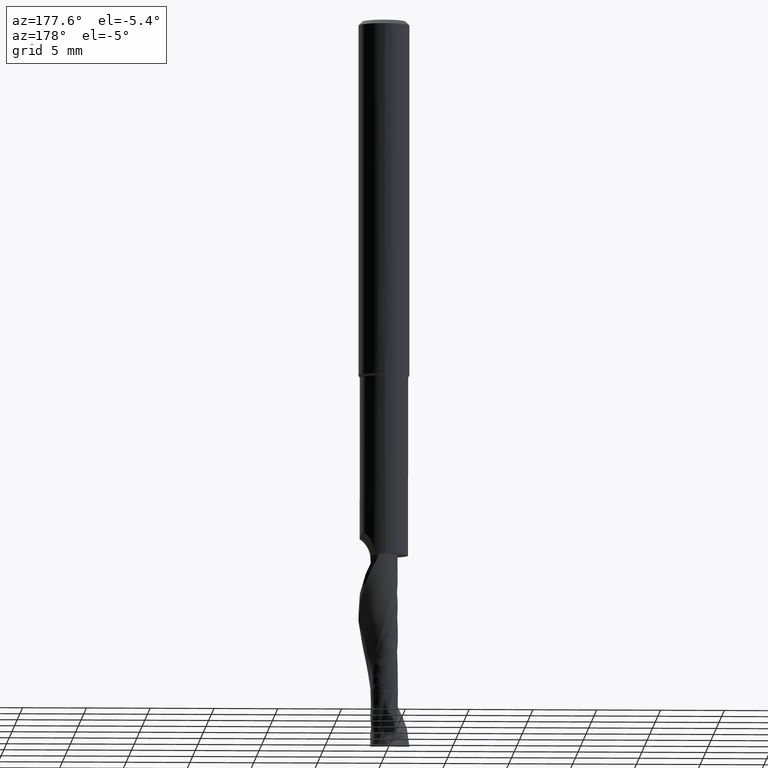
[diagram: clean part render]
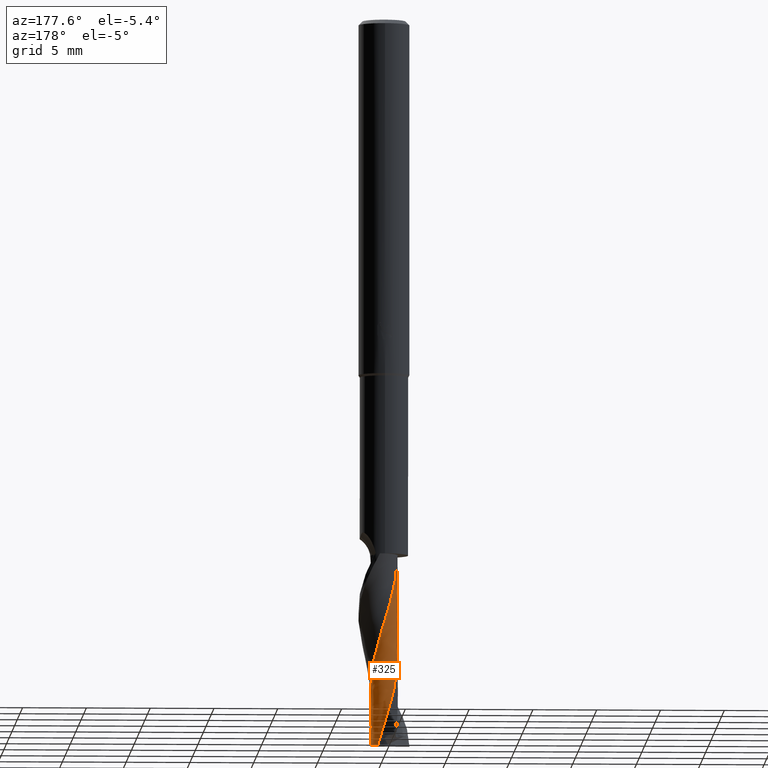
[diagram: same view with one face highlighted and labeled with its STEP entity id]
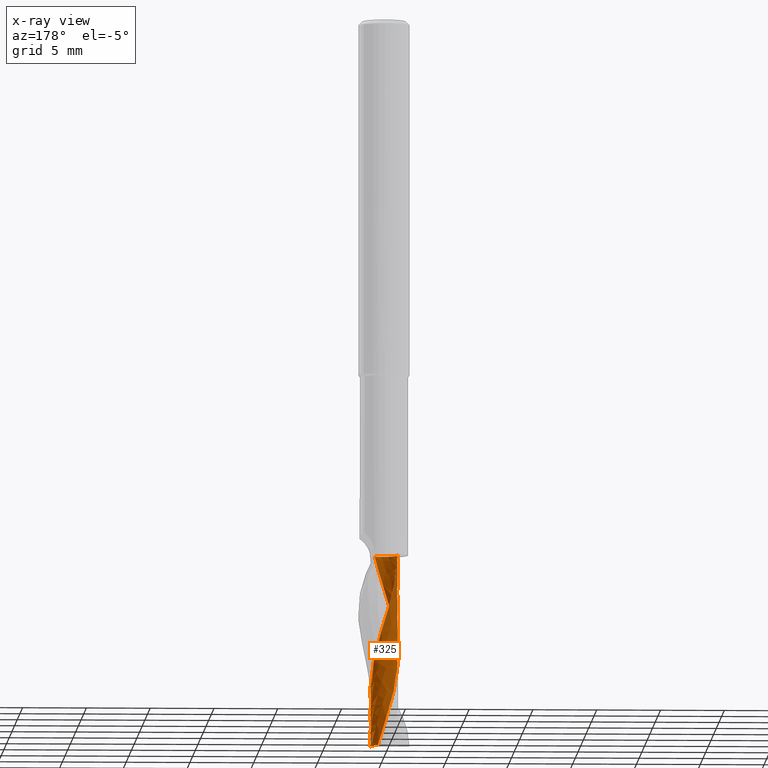
[diagram: x-ray of the same camera — body ghosted, the highlighted face saturated]
A machine part, auxiliary view. The second image highlights one B-rep face of the part: STEP entity #325.
The next image is the same camera in x-ray: the body ghosted, the highlighted face saturated — about 0% of this face is hidden behind the body in this view.
In plain terms, the highlighted face is a freeform B-spline surface patch.
Its self-contained STEP definition (entity closure, byte-faithful):
#305=EDGE_CURVE('',#445,#691,#803,.T.);
#325=ADVANCED_FACE('',(#825),#826,.T.);
#351=EDGE_CURVE('',#563,#491,#854,.T.);
#361=EDGE_CURVE('',#563,#691,#868,.T.);
#445=VERTEX_POINT('',#962);
#491=VERTEX_POINT('',#1009);
#563=VERTEX_POINT('',#1089);
#591=EDGE_CURVE('',#491,#703,#1119,.T.);
#661=EDGE_CURVE('',#703,#445,#1197,.T.);
#691=VERTEX_POINT('',#1227);
#703=VERTEX_POINT('',#1240);
#803=B_SPLINE_CURVE_WITH_KNOTS('',3,(#1369,#1370,#1371,#1372,#1373,#1374,#1375,#1376,#1377,#1378,#1379,#1380,#1381,#1382),.UNSPECIFIED.,.F.,.F.,(4,2,2,2,2,2,4),(0.0,0.421110566763019,0.842221411525551,1.26333260800939,1.68444420255609,2.08281996873919,2.48119707002098),.UNSPECIFIED.);
#825=FACE_OUTER_BOUND('',#1643,.T.);
#826=B_SPLINE_SURFACE_WITH_KNOTS('',3,3,((#1644,#1645,#1646,#1647,#1648,#1649,#1650,#1651,#1652,#1653,#1654,#1655,#1656,#1657,#1658,#1659,#1660,#1661,#1662,#1663,#1664,#1665,#1666,#1667,#1668,#1669,#1670,#1671,#1672,#1673,#1674,#1675,#1676,#1677,#1678),(#1679,#1680,#1681,#1682,#1683,#1684,#1685,#1686,#1687,#1688,#1689,#1690,#1691,#1692,#1693,#1694,#1695,#1696,#1697,#1698,#1699,#1700,#1701,#1702,#1703,#1704,#1705,#1706,#1707,#1708,#1709,#1710,#1711,#1712,#1713),(#1714,#1715,#1716,#1717,#1718,#1719,#1720,#1721,#1722,#1723,#1724,#1725,#1726,#1727,#1728,#1729,#1730,#1731,#1732,#1733,#1734,#1735,#1736,#1737,#1738,#1739,#1740,#1741,#1742,#1743,#1744,#1745,#1746,#1747,#1748),(#1749,#1750,#1751,#1752,#1753,#1754,#1755,#1756,#1757,#1758,#1759,#1760,#1761,#1762,#1763,#1764,#1765,#1766,#1767,#1768,#1769,#1770,#1771,#1772,#1773,#1774,#1775,#1776,#1777,#1778,#1779,#1780,#1781,#1782,#1783),(#1784,#1785,#1786,#1787,#1788,#1789,#1790,#1791,#1792,#1793,#1794,#1795,#1796,#1797,#1798,#1799,#1800,#1801,#1802,#1803,#1804,#1805,#1806,#1807,#1808,#1809,#1810,#1811,#1812,#1813,#1814,#1815,#1816,#1817,#1818),(#1819,#1820,#1821,#1822,#1823,#1824,#1825,#1826,#1827,#1828,#1829,#1830,#1831,#1832,#1833,#1834,#1835,#1836,#1837,#1838,#1839,#1840,#1841,#1842,#1843,#1844,#1845,#1846,#1847,#1848,#1849,#1850,#1851,#1852,#1853),(#1854,#1855,#1856,#1857,#1858,#1859,#1860,#1861,#1862,#1863,#1864,#1865,#1866,#1867,#1868,#1869,#1870,#1871,#1872,#1873,#1874,#1875,#1876,#1877,#1878,#1879,#1880,#1881,#1882,#1883,#1884,#1885,#1886,#1887,#1888)),.UNSPECIFIED.,.F.,.F.,.F.,(4,1,1,1,4),(4,1,2,1,2,1,2,2,2,2,2,2,2,2,2,2,2,2,4),(-2.29472854696994,-1.72104641022745,-1.14736427348497,-0.573682136742484,9.55386460006911E-017),(0.0,0.719943288048691,1.43988657609738,2.15982986414607,2.87977315219476,4.31965972829214,5.75954630438952,7.19943288048691,8.63931945658429,10.0792060326817,11.519092608779,12.9589791848764,14.3988657609738,15.8387523370712,17.2786389131686,18.718525489266,20.1584120653633,21.5982986414607,23.0381852175581),.UNSPECIFIED.);
#854=B_SPLINE_CURVE_WITH_KNOTS('',3,(#2002,#2003,#2004,#2005,#2006,#2007,#2008,#2009,#2010,#2011),.UNSPECIFIED.,.F.,.F.,(4,2,2,2,4),(0.0,0.421110385458142,0.842221169891116,1.16426893967863,1.48631686795479),.UNSPECIFIED.);
#868=B_SPLINE_CURVE_WITH_KNOTS('',3,(#2028,#2029,#2030,#2031,#2032,#2033,#2034,#2035,#2036,#2037,#2038,#2039,#2040,#2041,#2042,#2043,#2044,#2045,#2046,#2047,#2048,#2049,#2050,#2051,#2052,#2053,#2054,#2055,#2056,#2057,#2058,#2059,#2060,#2061,#2062),.UNSPECIFIED.,.F.,.F.,(4,1,2,1,2,1,2,2,2,2,2,2,2,2,2,2,2,2,4),(0.0,0.719943288048691,1.43988657609738,2.15982986414607,2.87977315219476,4.31965972829214,5.75954630438952,7.19943288048691,8.63931945658429,10.0792060326817,11.519092608779,12.9589791848764,14.3988657609738,15.8387523370712,17.2786389131686,18.718525489266,20.1584120653633,21.5982986414607,23.0381852175581),.UNSPECIFIED.);
#962=CARTESIAN_POINT('',(-1.06526862432302,0.0507138447766669,-42.0));
#1009=CARTESIAN_POINT('',(1.03933607182173,-0.272271360000001,-57.0));
#1089=CARTESIAN_POINT('',(0.525325365679518,0.951860172944799,-56.9999999999998));
#1119=B_SPLINE_CURVE_WITH_KNOTS('',3,(#3325,#3326,#3327,#3328,#3329,#3330,#3331,#3332),.UNSPECIFIED.,.F.,.F.,(4,2,2,4),(0.0,0.462170003948689,0.758488482032344,1.05698826577929),.UNSPECIFIED.);
#1197=B_SPLINE_CURVE_WITH_KNOTS('',3,(#3583,#3584,#3585,#3586,#3587,#3588,#3589,#3590,#3591,#3592,#3593,#3594,#3595,#3596,#3597,#3598,#3599,#3600,#3601,#3602,#3603,#3604,#3605,#3606,#3607,#3608,#3609,#3610,#3611,#3612,#3613,#3614,#3615,#3616,#3617,#3618,#3619,#3620,#3621),.UNSPECIFIED.,.F.,.F.,(4,1,2,1,2,1,1,1,2,1,1,2,1,1,2,1,1,1,2,1,1,2,1,1,2,1,1,1,4),(0.0,0.719943288048691,1.43988657609738,2.15982986414607,2.87977315219476,3.59971644024345,4.31965972829214,5.03960301634083,5.75954630438952,6.47948959243822,7.55940452451125,8.63931945658429,9.71923438865732,10.7991493207304,11.519092608779,12.2390358968277,12.9589791848764,13.6789224729251,14.3988657609738,15.1188090490225,16.1987239810955,17.2786389131686,18.3585538452416,19.4384687773146,20.1584120653633,20.878355353412,21.5982986414607,22.3182419295094,23.0381852175581),.UNSPECIFIED.);
#1227=CARTESIAN_POINT('',(0.683510137595244,-0.846623738727398,-41.9999999999999));
#1240=CARTESIAN_POINT('',(0.419232439623331,-0.981047397900082,-56.7697047050683));
#1369=CARTESIAN_POINT('',(-1.06526862442261,0.0507138447676308,-42.0));
#1370=CARTESIAN_POINT('',(-1.07237452036183,-0.0894763695150361,-42.0));
#1371=CARTESIAN_POINT('',(-1.05203029032943,-0.229714233472873,-42.0));
#1372=CARTESIAN_POINT('',(-0.958731768449056,-0.494498292006669,-42.0));
#1373=CARTESIAN_POINT('',(-0.886669421913038,-0.616513009581565,-42.0));
#1374=CARTESIAN_POINT('',(-0.699830820286628,-0.8260521857609,-42.0));
#1375=CARTESIAN_POINT('',(-0.586840803396218,-0.911573312327195,-42.0));
#1376=CARTESIAN_POINT('',(-0.334439001240091,-1.03449116923069,-42.0));
#1377=CARTESIAN_POINT('',(-0.197440290575393,-1.0707126918751,-42.0));
#1378=CARTESIAN_POINT('',(0.0751669363192613,-1.08812030164771,-42.0));
#1379=CARTESIAN_POINT('',(0.208119006321404,-1.0720232480769,-42.0));
#1380=CARTESIAN_POINT('',(0.461466118724199,-0.992334765425384,-42.0));
#1381=CARTESIAN_POINT('',(0.579693993712606,-0.929424830639047,-42.0));
#1382=CARTESIAN_POINT('',(0.683510137595202,-0.846623738727432,-42.0));
#1643=EDGE_LOOP('',(#4155,#4156,#4157,#4158,#4159));
#1644=CARTESIAN_POINT('',(-0.745410362770607,-0.778736371189316,-61.0));
#1645=CARTESIAN_POINT('',(-0.710858168081494,-0.803201734456152,-60.7603137171853));
#1646=CARTESIAN_POINT('',(-0.628700295122371,-0.863262752812119,-60.2814547144467));
#1647=CARTESIAN_POINT('',(-0.505331455114652,-0.938212019447683,-59.8026766142409));
#1648=CARTESIAN_POINT('',(-0.355674214242603,-1.00838090956248,-59.3231970892324));
#1649=CARTESIAN_POINT('',(-0.204971542055766,-1.05637683104392,-58.8436634261079));
#1650=CARTESIAN_POINT('',(-0.0549148999149831,-1.06948069756197,-58.3644418018073));
#1651=CARTESIAN_POINT('',(0.172065251191029,-1.0659294403695,-57.6458949883129));
#1652=CARTESIAN_POINT('',(0.451520523343251,-0.996175411741687,-56.6874635591332));
#1653=CARTESIAN_POINT('',(0.690794601401604,-0.825903055455958,-55.729654205104));
#1654=CARTESIAN_POINT('',(0.902102247170002,-0.594547401004369,-54.771157495296));
#1655=CARTESIAN_POINT('',(0.971931388211046,-0.465354780369871,-54.2916996133276));
#1656=CARTESIAN_POINT('',(1.05819125994818,-0.19294221144568,-53.3333114673274));
#1657=CARTESIAN_POINT('',(1.07568410348672,-0.0477606214384906,-52.8543807561396));
#1658=CARTESIAN_POINT('',(1.04747690216153,0.263829860971148,-51.8960864726259));
#1659=CARTESIAN_POINT('',(0.999337368228268,0.403037633165716,-51.4166961138958));
#1660=CARTESIAN_POINT('',(0.856259997073559,0.65122903494174,-50.4583674622387));
#1661=CARTESIAN_POINT('',(0.760646435757398,0.762277189630902,-49.9794292131119));
#1662=CARTESIAN_POINT('',(0.511982645402046,0.951190083374308,-49.0210937492565));
#1663=CARTESIAN_POINT('',(0.377037154310089,1.0094232599712,-48.5416958744105));
#1664=CARTESIAN_POINT('',(0.0976792019401992,1.07124146159706,-47.5833634187959));
#1665=CARTESIAN_POINT('',(-0.0487198371896007,1.07570506001651,-47.1044288469826));
#1666=CARTESIAN_POINT('',(-0.356095884709745,1.01981129706638,-46.1460944152656));
#1667=CARTESIAN_POINT('',(-0.490251823085146,0.959548470236688,-45.6666966048052));
#1668=CARTESIAN_POINT('',(-0.724625891043754,0.795048866563263,-44.7083601783653));
#1669=CARTESIAN_POINT('',(-0.826834017137298,0.689933344559016,-44.229421539479));
#1670=CARTESIAN_POINT('',(-0.99311564586901,0.425145833667939,-43.2710704078216));
#1671=CARTESIAN_POINT('',(-1.03901339126686,0.285564479207503,-42.7916695695128));
#1672=CARTESIAN_POINT('',(-1.07564491396661,0.00195197574361278,-41.8333613039435));
#1673=CARTESIAN_POINT('',(-1.06709967136522,-0.144159019796875,-41.3544540779593));
#1674=CARTESIAN_POINT('',(-0.984066796631788,-0.445745237883234,-40.39619892613));
#1675=CARTESIAN_POINT('',(-0.911902758239155,-0.574338670760893,-39.916787128951));
#1676=CARTESIAN_POINT('',(-0.727507965309587,-0.79246822730037,-38.9583525810429));
#1677=CARTESIAN_POINT('',(-0.61432255763297,-0.883840543194126,-38.4793290935274));
#1678=CARTESIAN_POINT('',(-0.477194076033998,-0.953822592769467,-38.0000946378718));
#1679=CARTESIAN_POINT('',(-0.596487520746686,-0.921271795053742,-61.0));
#1680=CARTESIAN_POINT('',(-0.556569927417889,-0.940131232464095,-60.7603194320611));
#1681=CARTESIAN_POINT('',(-0.461727120337808,-0.985810477007669,-60.2814437837753));
#1682=CARTESIAN_POINT('',(-0.323682117648338,-1.03698357886209,-59.8026444780488));
#1683=CARTESIAN_POINT('',(-0.160921688212159,-1.07783263819034,-59.3231818253761));
#1684=CARTESIAN_POINT('',(-0.00118131759887036,-1.09656698434505,-58.84366803396));
#1685=CARTESIAN_POINT('',(0.151442189884802,-1.08067703903966,-58.3644494197837));
#1686=CARTESIAN_POINT('',(0.37768997543993,-1.03322951529471,-57.6458916196047));
#1687=CARTESIAN_POINT('',(0.644369306591047,-0.90953335933463,-56.6874655005713));
#1688=CARTESIAN_POINT('',(0.851070634115776,-0.692756257459815,-55.7296277085834));
#1689=CARTESIAN_POINT('',(1.01718067193864,-0.420843485259329,-54.7711398191002));
#1690=CARTESIAN_POINT('',(1.06224856819779,-0.278015191090914,-54.2916977115073));
#1691=CARTESIAN_POINT('',(1.0961501520155,0.0115379142825617,-53.3333125327882));
#1692=CARTESIAN_POINT('',(1.08562170489311,0.160360947048192,-52.8543690367521));
#1693=CARTESIAN_POINT('',(0.997084009268033,0.466001856249058,-51.8960726011444));
#1694=CARTESIAN_POINT('',(0.922073188383587,0.596137959210471,-51.4166943678855));
#1695=CARTESIAN_POINT('',(0.73088567519894,0.817176167233087,-50.4583654553685));
#1696=CARTESIAN_POINT('',(0.61365259241906,0.909934318312296,-49.9794148302293));
#1697=CARTESIAN_POINT('',(0.328761594743143,1.05038425140644,-49.021079431589));
#1698=CARTESIAN_POINT('',(0.182403492898499,1.08272526069736,-48.5416941152234));
#1699=CARTESIAN_POINT('',(-0.10937864532252,1.09079080214597,-47.5833615617863));
#1700=CARTESIAN_POINT('',(-0.256888890677298,1.06697150192239,-47.1044144115368));
#1701=CARTESIAN_POINT('',(-0.552967701858174,0.951607659894461,-46.1460800450347));
#1702=CARTESIAN_POINT('',(-0.67571882714836,0.865427787766661,-45.6666947268339));
#1703=CARTESIAN_POINT('',(-0.878790038411094,0.655442955133225,-44.7083584960389));
#1704=CARTESIAN_POINT('',(-0.960854498052679,0.530400676520408,-44.2294074843507));
#1705=CARTESIAN_POINT('',(-1.07557514651304,0.233802659598487,-43.2710572657029));
#1706=CARTESIAN_POINT('',(-1.09467337084306,0.0851734487767738,-42.7916691500095));
#1707=CARTESIAN_POINT('',(-1.07668972769783,-0.206022034128495,-41.8333594497108));
#1708=CARTESIAN_POINT('',(-1.03989390457931,-0.350733423086035,-41.3544381874225));
#1709=CARTESIAN_POINT('',(-0.898554347176122,-0.635746227376536,-40.3961787966202));
#1710=CARTESIAN_POINT('',(-0.801534411186692,-0.75060999128518,-39.9167803181859));
#1711=CARTESIAN_POINT('',(-0.57474328960217,-0.933590120311848,-38.9583513135503));
#1712=CARTESIAN_POINT('',(-0.443691798446325,-1.00328766493695,-38.4793201815859));
#1713=CARTESIAN_POINT('',(-0.29314045656894,-1.04665914305066,-38.0000895083986));
#1714=CARTESIAN_POINT('',(-0.214894295938773,-1.11822949173827,-61.0));
#1715=CARTESIAN_POINT('',(-0.167562760706108,-1.1227246042726,-60.7603428712912));
#1716=CARTESIAN_POINT('',(-0.0558571282148039,-1.13218951175308,-60.2813989544438));
#1717=CARTESIAN_POINT('',(0.0974891501705745,-1.12720457293862,-59.8025126678088));
#1718=CARTESIAN_POINT('',(0.269139047723568,-1.10174723015319,-59.3231192259401));
#1719=CARTESIAN_POINT('',(0.429680609420141,-1.05668898924038,-58.8436869327104));
#1720=CARTESIAN_POINT('',(0.570334835162614,-0.98135731847416,-58.3644806602971));
#1721=CARTESIAN_POINT('',(0.769233628277117,-0.846639339062261,-57.6458778116744));
#1722=CARTESIAN_POINT('',(0.978577504978726,-0.622703793258758,-56.6874734671876));
#1723=CARTESIAN_POINT('',(1.0927762671552,-0.332221012374736,-55.7295190175723));
#1724=CARTESIAN_POINT('',(1.14466733080023,-0.00593052911545983,-54.7710673372241));
#1725=CARTESIAN_POINT('',(1.1322226050821,0.149539332756311,-54.2916899342438));
#1726=CARTESIAN_POINT('',(1.05140739249676,0.442462438893621,-53.3333168797509));
#1727=CARTESIAN_POINT('',(0.982746578587671,0.582036635111121,-52.8543209092945));
#1728=CARTESIAN_POINT('',(0.777180340952087,0.840213555154849,-51.8960157685259));
#1729=CARTESIAN_POINT('',(0.653831762707426,0.936378884533968,-51.4166872361896));
#1730=CARTESIAN_POINT('',(0.382535140406296,1.07479580095219,-50.4583571947667));
#1731=CARTESIAN_POINT('',(0.232893118740553,1.11826243545598,-49.9793557453288));
#1732=CARTESIAN_POINT('',(-0.0957990922709878,1.14052274702949,-49.0210208021505));
#1733=CARTESIAN_POINT('',(-0.249690280698403,1.11440258114537,-48.5416868008806));
#1734=CARTESIAN_POINT('',(-0.534597150965804,1.00774666697964,-47.5833540444053));
#1735=CARTESIAN_POINT('',(-0.667649016440907,0.926764419484328,-47.1043552508479));
#1736=CARTESIAN_POINT('',(-0.906086882141917,0.699244639237492,-46.146021060251));
#1737=CARTESIAN_POINT('',(-0.990768463217517,0.568009388136714,-45.6666871436232));
#1738=CARTESIAN_POINT('',(-1.10447550538831,0.285606948911104,-44.7083514768273));
#1739=CARTESIAN_POINT('',(-1.13454315716296,0.132630890740799,-44.2293497357986));
#1740=CARTESIAN_POINT('',(-1.12748905815431,-0.197117099408035,-43.2710034656433));
#1741=CARTESIAN_POINT('',(-1.08770775790117,-0.348019671474192,-42.7916672646364));
#1742=CARTESIAN_POINT('',(-0.956134307373199,-0.622158814444629,-41.833352009428));
#1743=CARTESIAN_POINT('',(-0.863720740716596,-0.747414409327964,-41.3543729970033));
#1744=CARTESIAN_POINT('',(-0.615661016450184,-0.964930811147936,-40.3960962520596));
#1745=CARTESIAN_POINT('',(-0.477076787882721,-1.03770585634487,-39.9167522968156));
#1746=CARTESIAN_POINT('',(-0.186307857398849,-1.12545812061428,-38.9583462022217));
#1747=CARTESIAN_POINT('',(-0.0323425943091227,-1.14131498053528,-38.4792835078258));
#1748=CARTESIAN_POINT('',(0.129334555386239,-1.12360449595583,-38.0000684700647));
#1749=CARTESIAN_POINT('',(0.426403381277461,-1.0558394343148,-61.0));
#1750=CARTESIAN_POINT('',(0.47138618589726,-1.03619427652318,-60.7604028263964));
#1751=CARTESIAN_POINT('',(0.57486547658777,-0.986287054124797,-60.2812842835533));
#1752=CARTESIAN_POINT('',(0.701781906451373,-0.898063976986566,-59.8021755160938));
#1753=CARTESIAN_POINT('',(0.830659251203996,-0.781796926672167,-59.3229590988248));
#1754=CARTESIAN_POINT('',(0.940280072563664,-0.655681712380703,-58.8437352746205));
#1755=CARTESIAN_POINT('',(1.01745934886702,-0.51517279231171,-58.364560572774));
#1756=CARTESIAN_POINT('',(1.11084440750033,-0.292721880156755,-57.6458424872147));
#1757=CARTESIAN_POINT('',(1.16632191203607,0.0108821859874899,-56.6874938398474));
#1758=CARTESIAN_POINT('',(1.10392924303672,0.31896216891348,-55.7292410131807));
#1759=CARTESIAN_POINT('',(0.967591296419168,0.620810483033399,-54.7708819210562));
#1760=CARTESIAN_POINT('',(0.87236623695708,0.745395545273501,-54.2916700267273));
#1761=CARTESIAN_POINT('',(0.644217561730803,0.949180617853169,-53.3333280129321));
#1762=CARTESIAN_POINT('',(0.50981523960948,1.02977462789331,-52.8541978265498));
#1763=CARTESIAN_POINT('',(0.195383408263367,1.13286000382194,-51.8958703747968));
#1764=CARTESIAN_POINT('',(0.0387634978671734,1.14685874037409,-51.4166689460996));
#1765=CARTESIAN_POINT('',(-0.266245214039719,1.11592593348762,-50.4583361130196));
#1766=CARTESIAN_POINT('',(-0.416609810872376,1.07088247840602,-49.9792046888077));
#1767=CARTESIAN_POINT('',(-0.70429678548251,0.908518984824706,-49.0208707581908));
#1768=CARTESIAN_POINT('',(-0.820092225732388,0.802581480351935,-48.5416681675349));
#1769=CARTESIAN_POINT('',(-1.002944040674,0.556926451585434,-47.5833347398272));
#1770=CARTESIAN_POINT('',(-1.07123872122366,0.415665404301837,-47.1042039211433));
#1771=CARTESIAN_POINT('',(-1.14572447810151,0.0937060818268936,-46.1458701866587));
#1772=CARTESIAN_POINT('',(-1.14574537069535,-0.0633267428864512,-45.6666676545266));
#1773=CARTESIAN_POINT('',(-1.08786519911659,-0.364257764020262,-44.7083336144999));
#1774=CARTESIAN_POINT('',(-1.0296560123006,-0.510113616589765,-44.2292021569814));
#1775=CARTESIAN_POINT('',(-0.842130055418109,-0.782512968070744,-43.2708657152664));
#1776=CARTESIAN_POINT('',(-0.726285830110965,-0.888349832649803,-42.7916625932416));
#1777=CARTESIAN_POINT('',(-0.465427534815333,-1.04852281263289,-41.8333328268213));
#1778=CARTESIAN_POINT('',(-0.318750921055491,-1.10398031654264,-41.3542062437341));
#1779=CARTESIAN_POINT('',(0.00887416180856904,-1.14954771714294,-40.3958851152849));
#1780=CARTESIAN_POINT('',(0.165583954157903,-1.13543820519561,-39.9166806723062));
#1781=CARTESIAN_POINT('',(0.459470514821171,-1.0510830390244,-38.958333076882));
#1782=CARTESIAN_POINT('',(0.598487300974245,-0.980425574468644,-38.4791897743751));
#1783=CARTESIAN_POINT('',(0.724463530259229,-0.876669827594027,-38.0000146562739));
#1784=CARTESIAN_POINT('',(0.931184050385586,-0.655387468805412,-61.0));
#1785=CARTESIAN_POINT('',(0.961092543153849,-0.616741034714837,-60.760468383953));
#1786=CARTESIAN_POINT('',(1.02543953111968,-0.521430378117194,-60.2811588974667));
#1787=CARTESIAN_POINT('',(1.0849813105612,-0.377637736152506,-59.8018068588852));
#1788=CARTESIAN_POINT('',(1.12864819405155,-0.208311222855233,-59.3227840090269));
#1789=CARTESIAN_POINT('',(1.15150772836359,-0.0417503211156925,-58.8437881334587));
#1790=CARTESIAN_POINT('',(1.1399994528385,0.119053023329625,-58.364647953041));
#1791=CARTESIAN_POINT('',(1.09714602860015,0.357927876169068,-57.6458038611103));
#1792=CARTESIAN_POINT('',(0.980149262605921,0.644940152619921,-56.687516120994));
#1793=CARTESIAN_POINT('',(0.759882699373392,0.871959613021174,-55.7289370219208));
#1794=CARTESIAN_POINT('',(0.478712090113305,1.05112155643663,-54.7706791874622));
#1795=CARTESIAN_POINT('',(0.330719826657238,1.10483869170621,-54.2916482635496));
#1796=CARTESIAN_POINT('',(0.0271997701058085,1.15379284939992,-53.3333401818597));
#1797=CARTESIAN_POINT('',(-0.130410338029655,1.14916833297237,-52.8540632390209));
#1798=CARTESIAN_POINT('',(-0.45210876024215,1.06290436531292,-51.8957113980889));
#1799=CARTESIAN_POINT('',(-0.59208010709124,0.98983218679121,-51.4166489613469));
#1800=CARTESIAN_POINT('',(-0.833493882411898,0.798362026701233,-50.4583130468421));
#1801=CARTESIAN_POINT('',(-0.936428633225205,0.678584645635452,-49.9790394944462));
#1802=CARTESIAN_POINT('',(-1.08947414565697,0.383405784548643,-49.0207067157588));
#1803=CARTESIAN_POINT('',(-1.12995309773058,0.231103339698065,-48.5416477871163));
#1804=CARTESIAN_POINT('',(-1.15164794692318,-0.0759124527166302,-47.5833136372109));
#1805=CARTESIAN_POINT('',(-1.13283661090819,-0.232657687709366,-47.1040384302979));
#1806=CARTESIAN_POINT('',(-1.0183602252048,-0.544957958428329,-46.1457052348441));
#1807=CARTESIAN_POINT('',(-0.933271556701095,-0.677711216075703,-45.6666463455655));
#1808=CARTESIAN_POINT('',(-0.721215193403316,-0.90107996303262,-44.7083140817381));
#1809=CARTESIAN_POINT('',(-0.592724479215214,-0.993045219659222,-44.2290407553615));
#1810=CARTESIAN_POINT('',(-0.284740468841176,-1.11932926283084,-43.2707151251288));
#1811=CARTESIAN_POINT('',(-0.129467501556792,-1.14603301849193,-42.7916574676193));
#1812=CARTESIAN_POINT('',(0.178127833894316,-1.14031679742988,-41.8333118694087));
#1813=CARTESIAN_POINT('',(0.33250003149646,-1.10769921060563,-41.3540239162709));
#1814=CARTESIAN_POINT('',(0.633632742775086,-0.965660285382083,-40.3956542408116));
#1815=CARTESIAN_POINT('',(0.758412117263008,-0.86873714083265,-39.916602380815));
#1816=CARTESIAN_POINT('',(0.961510041833278,-0.638132770062865,-38.9583186991018));
#1817=CARTESIAN_POINT('',(1.04101764765046,-0.502922766298487,-38.4790872743311));
#1818=CARTESIAN_POINT('',(1.09030879580485,-0.346271355876338,-37.999955813857));
#1819=CARTESIAN_POINT('',(1.06897458208485,-0.24866126684069,-61.0));
#1820=CARTESIAN_POINT('',(1.08357268987466,-0.204828121163533,-60.7605018258432));
#1821=CARTESIAN_POINT('',(1.10959319568434,-0.0982493115980552,-60.281094936612));
#1822=CARTESIAN_POINT('',(1.11132091334582,0.0522901908428126,-59.8016188008666));
#1823=CARTESIAN_POINT('',(1.08809616901597,0.220508581488786,-59.3226946940202));
#1824=CARTESIAN_POINT('',(1.04775714867987,0.37833882125871,-58.8438150971022));
#1825=CARTESIAN_POINT('',(0.979258850402356,0.51843336361339,-58.36469252697));
#1826=CARTESIAN_POINT('',(0.854193852549302,0.717237512806958,-57.6457841573475));
#1827=CARTESIAN_POINT('',(0.646638011888674,0.932592082331983,-56.6875274820407));
#1828=CARTESIAN_POINT('',(0.367298979109296,1.05714098263165,-55.7287819614974));
#1829=CARTESIAN_POINT('',(0.0494094639384411,1.11524422346319,-54.7705757603835));
#1830=CARTESIAN_POINT('',(-0.102497516743635,1.11020500559134,-54.2916371483541));
#1831=CARTESIAN_POINT('',(-0.392225061239686,1.04522257346685,-53.3333464028885));
#1832=CARTESIAN_POINT('',(-0.532011839112514,0.984496637157452,-52.8539946004033));
#1833=CARTESIAN_POINT('',(-0.789307303054415,0.789598654544145,-51.895630285457));
#1834=CARTESIAN_POINT('',(-0.888472086060587,0.673800578237491,-51.4166387892664));
#1835=CARTESIAN_POINT('',(-1.0362301944503,0.415451087832258,-50.4583012580375));
#1836=CARTESIAN_POINT('',(-1.08558683594967,0.270985501408392,-49.9789552283551));
#1837=CARTESIAN_POINT('',(-1.11522625249708,-0.0498613455893425,-49.0206230335179));
#1838=CARTESIAN_POINT('',(-1.09677348098115,-0.200885578176142,-48.5416373857118));
#1839=CARTESIAN_POINT('',(-1.0060565480441,-0.483977497089096,-47.5833028775367));
#1840=CARTESIAN_POINT('',(-0.932880037017591,-0.617892849045859,-47.1039539844269));
#1841=CARTESIAN_POINT('',(-0.71610694037333,-0.856454427887611,-46.1456211172436));
#1842=CARTESIAN_POINT('',(-0.592149896579385,-0.94483819365294,-45.6666354686173));
#1843=CARTESIAN_POINT('',(-0.321826233567351,-1.06903200960844,-44.7083041247474));
#1844=CARTESIAN_POINT('',(-0.173476257303446,-1.10541218022953,-44.2289583981804));
#1845=CARTESIAN_POINT('',(0.149108464652441,-1.10633510574437,-43.270638330905));
#1846=CARTESIAN_POINT('',(0.297839884309109,-1.07447864338455,-42.7916548160303));
#1847=CARTESIAN_POINT('',(0.571613092513279,-0.958989440211498,-41.8333012156567));
#1848=CARTESIAN_POINT('',(0.698444557512826,-0.874280609320493,-41.3539308848181));
#1849=CARTESIAN_POINT('',(0.916904814904582,-0.636791148738165,-40.395536492117));
#1850=CARTESIAN_POINT('',(0.993861637343052,-0.505051645407287,-39.9165623918322));
#1851=CARTESIAN_POINT('',(1.09324641334273,-0.225400687926482,-38.9583114161708));
#1852=CARTESIAN_POINT('',(1.11609506836566,-0.0755705260847657,-38.4790349648086));
#1853=CARTESIAN_POINT('',(1.10332670327303,0.0829639725566931,-37.999925797514));
#1854=CARTESIAN_POINT('',(1.07714679396957,-0.0426817171631313,-61.0));
#1855=CARTESIAN_POINT('',(1.08399123720889,0.00145899359468432,-60.7605133153009));
#1856=CARTESIAN_POINT('',(1.09083513255892,0.108017801827599,-60.2810729616778));
#1857=CARTESIAN_POINT('',(1.06502852875529,0.253807720360794,-59.8015541908973));
#1858=CARTESIAN_POINT('',(1.01115751003306,0.412426612829748,-59.3226640080635));
#1859=CARTESIAN_POINT('',(0.942908259945685,0.55764976591211,-58.8438243611074));
#1860=CARTESIAN_POINT('',(0.850985734571225,0.68046612159865,-58.3647078409853));
#1861=CARTESIAN_POINT('',(0.693515458203038,0.849650748012728,-57.6457773879433));
#1862=CARTESIAN_POINT('',(0.454003221681921,1.01970889234668,-56.6875313890678));
#1863=CARTESIAN_POINT('',(0.161391087956976,1.08905359496926,-55.7287286803577));
#1864=CARTESIAN_POINT('',(-0.156954180196683,1.08643210059574,-54.7705402340196));
#1865=CARTESIAN_POINT('',(-0.302679609183262,1.05380957028583,-54.2916333403399));
#1866=CARTESIAN_POINT('',(-0.570575250621284,0.93824496526071,-53.3333485294366));
#1867=CARTESIAN_POINT('',(-0.694533057388626,0.854111837657368,-52.8539710114739));
#1868=CARTESIAN_POINT('',(-0.907416134952439,0.617949992285343,-51.8956024249471));
#1869=CARTESIAN_POINT('',(-0.981987960209095,0.488025794941939,-51.4166352776186));
#1870=CARTESIAN_POINT('',(-1.07753943864469,0.211611154855253,-50.4582972246699));
#1871=CARTESIAN_POINT('',(-1.09887410064982,0.0630593954145104,-49.9789262798675));
#1872=CARTESIAN_POINT('',(-1.06820965025209,-0.252836405557617,-49.0205942806753));
#1873=CARTESIAN_POINT('',(-1.02279845019452,-0.395264436374698,-48.5416338158127));
#1874=CARTESIAN_POINT('',(-0.883578026970901,-0.652067177716402,-47.5832991772076));
#1875=CARTESIAN_POINT('',(-0.78847398670637,-0.768084464803542,-47.1039249954876));
#1876=CARTESIAN_POINT('',(-0.534623265440165,-0.958796618492741,-46.1455921935192));
#1877=CARTESIAN_POINT('',(-0.398800234823179,-1.02147122135842,-45.6666317429675));
#1878=CARTESIAN_POINT('',(-0.115126362453983,-1.09208755160707,-44.708300692565));
#1879=CARTESIAN_POINT('',(0.0348138366545575,-1.10017789254256,-44.2289301130618));
#1880=CARTESIAN_POINT('',(0.347086498472457,-1.04140070317747,-43.2706119370205));
#1881=CARTESIAN_POINT('',(0.484848963323444,-0.983472034535285,-42.791653932527));
#1882=CARTESIAN_POINT('',(0.728134405824674,-0.822039234602855,-41.8332975279097));
#1883=CARTESIAN_POINT('',(0.835207924227268,-0.71708989952403,-41.3538989479611));
#1884=CARTESIAN_POINT('',(1.00263592060748,-0.446888723728387,-40.3954960120989));
#1885=CARTESIAN_POINT('',(1.05284438898491,-0.305617984596714,-39.9165486954441));
#1886=CARTESIAN_POINT('',(1.09781520919169,-0.0174786807055713,-38.9583088715427));
#1887=CARTESIAN_POINT('',(1.09259152842703,0.131383705920863,-38.4790170220603));
#1888=CARTESIAN_POINT('',(1.05099513463292,0.282352454545382,-37.9999154849174));
#2002=CARTESIAN_POINT('',(0.525325365679637,0.951860172944733,-57.0));
#2003=CARTESIAN_POINT('',(0.647843216868642,0.883353610403483,-57.0));
#2004=CARTESIAN_POINT('',(0.755808917613256,0.791571610413138,-57.0));
#2005=CARTESIAN_POINT('',(0.930482032898196,0.571788833604837,-57.0));
#2006=CARTESIAN_POINT('',(0.995519441367856,0.445889261465897,-57.0));
#2007=CARTESIAN_POINT('',(1.06448171514377,0.207962457191401,-57.0));
#2008=CARTESIAN_POINT('',(1.07879829305722,0.100968804854117,-57.0));
#2009=CARTESIAN_POINT('',(1.07534594760644,-0.113702002427287,-57.0));
#2010=CARTESIAN_POINT('',(1.0575962931299,-0.220180016515959,-57.0));
#2011=CARTESIAN_POINT('',(1.02441147968474,-0.322271360000002,-57.0));
#2028=CARTESIAN_POINT('',(1.07714679396957,-0.0426817171631313,-61.0));
#2029=CARTESIAN_POINT('',(1.08399123720889,0.00145899359468432,-60.7605133153009));
#2030=CARTESIAN_POINT('',(1.09083513255892,0.108017801827599,-60.2810729616778));
#2031=CARTESIAN_POINT('',(1.06502852875529,0.253807720360794,-59.8015541908973));
#2032=CARTESIAN_POINT('',(1.01115751003306,0.412426612829748,-59.3226640080635));
#2033=CARTESIAN_POINT('',(0.942908259945685,0.55764976591211,-58.8438243611074));
#2034=CARTESIAN_POINT('',(0.850985734571225,0.68046612159865,-58.3647078409853));
#2035=CARTESIAN_POINT('',(0.693515458203038,0.849650748012728,-57.6457773879433));
#2036=CARTESIAN_POINT('',(0.454003221681921,1.01970889234668,-56.6875313890678));
#2037=CARTESIAN_POINT('',(0.161391087956976,1.08905359496926,-55.7287286803577));
#2038=CARTESIAN_POINT('',(-0.156954180196683,1.08643210059574,-54.7705402340196));
#2039=CARTESIAN_POINT('',(-0.302679609183262,1.05380957028583,-54.2916333403399));
#2040=CARTESIAN_POINT('',(-0.570575250621284,0.93824496526071,-53.3333485294366));
#2041=CARTESIAN_POINT('',(-0.694533057388626,0.854111837657368,-52.8539710114739));
#2042=CARTESIAN_POINT('',(-0.907416134952439,0.617949992285343,-51.8956024249471));
#2043=CARTESIAN_POINT('',(-0.981987960209095,0.488025794941939,-51.4166352776186));
#2044=CARTESIAN_POINT('',(-1.07753943864469,0.211611154855253,-50.4582972246699));
#2045=CARTESIAN_POINT('',(-1.09887410064982,0.0630593954145104,-49.9789262798675));
#2046=CARTESIAN_POINT('',(-1.06820965025209,-0.252836405557617,-49.0205942806753));
#2047=CARTESIAN_POINT('',(-1.02279845019452,-0.395264436374698,-48.5416338158127));
#2048=CARTESIAN_POINT('',(-0.883578026970901,-0.652067177716402,-47.5832991772076));
#2049=CARTESIAN_POINT('',(-0.78847398670637,-0.768084464803542,-47.1039249954876));
#2050=CARTESIAN_POINT('',(-0.534623265440165,-0.958796618492741,-46.1455921935192));
#2051=CARTESIAN_POINT('',(-0.398800234823179,-1.02147122135842,-45.6666317429675));
#2052=CARTESIAN_POINT('',(-0.115126362453983,-1.09208755160707,-44.708300692565));
#2053=CARTESIAN_POINT('',(0.0348138366545575,-1.10017789254256,-44.2289301130618));
#2054=CARTESIAN_POINT('',(0.347086498472457,-1.04140070317747,-43.2706119370205));
#2055=CARTESIAN_POINT('',(0.484848963323444,-0.983472034535285,-42.791653932527));
#2056=CARTESIAN_POINT('',(0.728134405824674,-0.822039234602855,-41.8332975279097));
#2057=CARTESIAN_POINT('',(0.835207924227268,-0.71708989952403,-41.3538989479611));
#2058=CARTESIAN_POINT('',(1.00263592060748,-0.446888723728387,-40.3954960120989));
#2059=CARTESIAN_POINT('',(1.05284438898491,-0.305617984596714,-39.9165486954441));
#2060=CARTESIAN_POINT('',(1.09781520919169,-0.0174786807055713,-38.9583088715427));
#2061=CARTESIAN_POINT('',(1.09259152842703,0.131383705920863,-38.4790170220603));
#2062=CARTESIAN_POINT('',(1.05099513463292,0.282352454545382,-37.9999154849174));
#3325=CARTESIAN_POINT('',(1.0511895340823,-0.224718534185246,-57.0154508497187));
#3326=CARTESIAN_POINT('',(1.01891993378247,-0.367984804693776,-56.9689008166247));
#3327=CARTESIAN_POINT('',(0.957464725244866,-0.504170295164499,-56.92465146842));
#3328=CARTESIAN_POINT('',(0.813168252721435,-0.701427078731603,-56.8605588542235));
#3329=CARTESIAN_POINT('',(0.746445057330052,-0.771174026169231,-56.8378966972584));
#3330=CARTESIAN_POINT('',(0.594567450765753,-0.892126585177254,-56.7985968285269));
#3331=CARTESIAN_POINT('',(0.510022220762814,-0.942595958469532,-56.7821983350878));
#3332=CARTESIAN_POINT('',(0.419232439682204,-0.981047397982562,-56.7697047050415));
#3583=CARTESIAN_POINT('',(-0.7454103627123,-0.778736371108074,-61.0));
#3584=CARTESIAN_POINT('',(-0.71085816802661,-0.803201734372931,-60.7603137171853));
#3585=CARTESIAN_POINT('',(-0.628700295074678,-0.863262752723454,-60.2814547144464));
#3586=CARTESIAN_POINT('',(-0.505331455079665,-0.938212019353723,-59.8026766142414));
#3587=CARTESIAN_POINT('',(-0.355674214222451,-1.0083809094642,-59.3231970892319));
#3588=CARTESIAN_POINT('',(-0.204971542050152,-1.05637683094339,-58.8436634261087));
#3589=CARTESIAN_POINT('',(-0.0549148999241464,-1.06948069746193,-58.3644418018063));
#3590=CARTESIAN_POINT('',(0.0964052008001218,-1.06711319266951,-57.8854105928121));
#3591=CARTESIAN_POINT('',(0.242446835293972,-1.04796660358779,-57.4062613204771));
#3592=CARTESIAN_POINT('',(0.444067406430681,-0.977494979163422,-56.6875933215937));
#3593=CARTESIAN_POINT('',(0.630141428757512,-0.868368663076686,-55.9690798867515));
#3594=CARTESIAN_POINT('',(0.743621512764961,-0.768064141781557,-55.4900300276519));
#3595=CARTESIAN_POINT('',(0.8492753356405,-0.652386314567438,-55.0107816727479));
#3596=CARTESIAN_POINT('',(0.958689402422757,-0.498441780257405,-54.411547930503));
#3597=CARTESIAN_POINT('',(1.05698802071046,-0.230578150210571,-53.4530320832033));
#3598=CARTESIAN_POINT('',(1.07215820322127,-0.00881181114975998,-52.7345939707004));
#3599=CARTESIAN_POINT('',(1.05100280223269,0.224881050635019,-52.0158732580651));
#3600=CARTESIAN_POINT('',(0.99082959013382,0.440065880882917,-51.2968409758389));
#3601=CARTESIAN_POINT('',(0.835572995281969,0.680260420725513,-50.3386206750373));
#3602=CARTESIAN_POINT('',(0.698480488114232,0.80950541298253,-49.7398453471523));
#3603=CARTESIAN_POINT('',(0.574148592949162,0.903961859847254,-49.2606776152161));
#3604=CARTESIAN_POINT('',(0.443876205200215,0.98012818618651,-48.781365671711));
#3605=CARTESIAN_POINT('',(0.23887678508421,1.04725462835437,-48.0624863020905));
#3606=CARTESIAN_POINT('',(0.0247831182830096,1.07288632712679,-47.3438669417283));
#3607=CARTESIAN_POINT('',(-0.125563849044472,1.06173161918185,-46.8648452390534));
#3608=CARTESIAN_POINT('',(-0.279251872790312,1.03378473771175,-46.3856780231948));
#3609=CARTESIAN_POINT('',(-0.459494187530073,0.977830006452018,-45.7865339388309));
#3610=CARTESIAN_POINT('',(-0.700853309528335,0.824305786759621,-44.8280863783556));
#3611=CARTESIAN_POINT('',(-0.847619220641641,0.656834905648069,-44.1096276480346));
#3612=CARTESIAN_POINT('',(-0.972330442181389,0.458244272498831,-43.390864299266));
#3613=CARTESIAN_POINT('',(-1.0546347037374,0.250997294593875,-42.6718089914035));
#3614=CARTESIAN_POINT('',(-1.07681658169638,-0.0335703797830561,-41.7136203773672));
#3615=CARTESIAN_POINT('',(-1.0463414525871,-0.219555574284388,-41.1148902900019));
#3616=CARTESIAN_POINT('',(-1.00482501522712,-0.370348683314551,-40.6357627140873));
#3617=CARTESIAN_POINT('',(-0.947411227082843,-0.510319849909731,-40.1564651761677));
#3618=CARTESIAN_POINT('',(-0.825016099186018,-0.688137612384367,-39.4375351726648));
#3619=CARTESIAN_POINT('',(-0.670793043363721,-0.837572724211429,-38.7188132644534));
#3620=CARTESIAN_POINT('',(-0.545758316794139,-0.918831567889592,-38.2397118657081));
#3621=CARTESIAN_POINT('',(-0.477194076001956,-0.95382259267474,-38.0000946378718));
#4155=ORIENTED_EDGE('',*,*,#591,.F.);
#4156=ORIENTED_EDGE('',*,*,#351,.F.);
#4157=ORIENTED_EDGE('',*,*,#361,.T.);
#4158=ORIENTED_EDGE('',*,*,#305,.F.);
#4159=ORIENTED_EDGE('',*,*,#661,.F.);